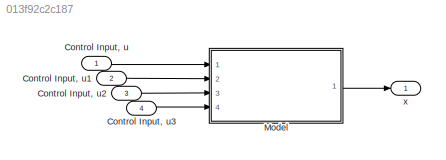
MODEL slx_013f92c2c187
KIND model
CONFIG AbsTol = auto
CONFIG EnableMultiTasking = off
CONFIG FixedStep = auto
CONFIG MaxStep = auto
CONFIG MinStep = auto
CONFIG RelTol = 1e-3
CONFIG SampleTimeConstraint = Unconstrained
CONFIG Solver = VariableStepAuto
CONFIG SolverName = VariableStepAuto
CONFIG StartTime = 0.0
CONFIG StopTime = 10.0
BLOCK [Outport]  x
  IconDisplay = Port number
BLOCK [Inport] Control Input, u
  IconDisplay = Port number
BLOCK [Inport] Control Input, u1
  IconDisplay = Port number
  Port = 2
BLOCK [Inport] Control Input, u2
  IconDisplay = Port number
  Port = 3
BLOCK [Inport] Control Input, u3
  IconDisplay = Port number
  Port = 4
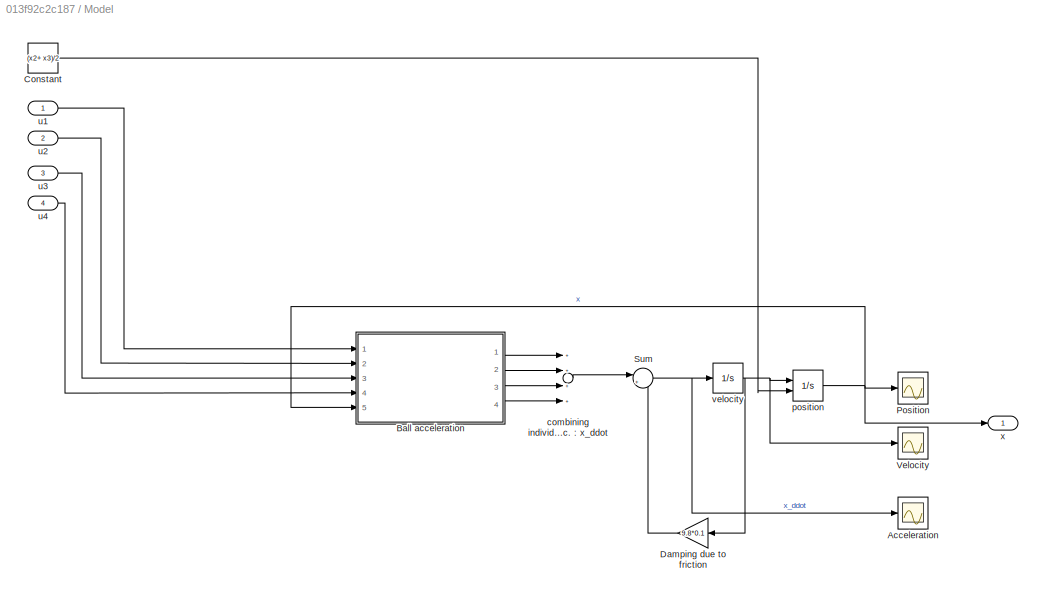
BLOCK [SubSystem] Model
  Ports = [4, 1]
  RequestExecContextInheritance = off
  Variant = off
BLOCK [Scope] Model/Acceleration
  NumInputPorts = 1
  Ports = [1]
  ScopeSpecificationString = C++SS(StrPVP('SaveName','ScopeData1'),StrPVP('LimitDataPoints','on'),StrPVP('DataFormat','Array'),StrPVP('Decimation','1'),StrPVP('BlockParamSampleInput','off'))
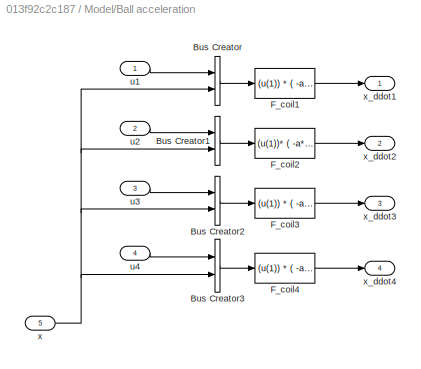
BLOCK [SubSystem] Model/Ball acceleration
  Ports = [5, 4]
  RequestExecContextInheritance = off
  Variant = off
BLOCK [BusCreator] Model/Ball acceleration/Bus Creator
  DisplayOption = bar
  InheritFromInputs = on
  Inputs = 2
  Ports = [2, 1]
BLOCK [BusCreator] Model/Ball acceleration/Bus Creator1
  DisplayOption = bar
  InheritFromInputs = on
  Inputs = 2
  Ports = [2, 1]
BLOCK [BusCreator] Model/Ball acceleration/Bus Creator2
  DisplayOption = bar
  InheritFromInputs = on
  Inputs = 2
  Ports = [2, 1]
BLOCK [BusCreator] Model/Ball acceleration/Bus Creator3
  DisplayOption = bar
  InheritFromInputs = on
  Inputs = 2
  Ports = [2, 1]
BLOCK [Fcn] Model/Ball acceleration/F_coil1
  Expr = (u(1)) * ( -a*(-x1+u(2)) / ( (m* (  (-x1 + u(2))^2 + b)^3)))
BLOCK [Fcn] Model/Ball acceleration/F_coil2
  Expr = (u(1))* ( -a*(u(2)-x2) / ( (m* (  (u(2) - x2)^2 + b)^3)))
BLOCK [Fcn] Model/Ball acceleration/F_coil3
  Expr = (u(1)) * ( -a*(u(2)-x3) / ( (m* (  (u(2)-x3)^2 + b)^3)))
BLOCK [Fcn] Model/Ball acceleration/F_coil4
  Expr = (u(1)) * ( -a*(u(2) -x4 ) / ( (m* (  (u(2) - x4)^2 + b)^3)))
BLOCK [Inport] Model/Ball acceleration/u1
  IconDisplay = Port number
BLOCK [Inport] Model/Ball acceleration/u2
  IconDisplay = Port number
  Port = 2
BLOCK [Inport] Model/Ball acceleration/u3
  IconDisplay = Port number
  Port = 3
BLOCK [Inport] Model/Ball acceleration/u4
  IconDisplay = Port number
  Port = 4
BLOCK [Inport] Model/Ball acceleration/x
  IconDisplay = Port number
  Port = 5
BLOCK [Outport] Model/Ball acceleration/x_ddot1
  IconDisplay = Port number
BLOCK [Outport] Model/Ball acceleration/x_ddot2
  IconDisplay = Port number
  Port = 2
BLOCK [Outport] Model/Ball acceleration/x_ddot3
  IconDisplay = Port number
  Port = 3
BLOCK [Outport] Model/Ball acceleration/x_ddot4
  IconDisplay = Port number
  Port = 4
BLOCK [Constant] Model/Constant
  Value = (x2+ x3)/2
BLOCK [Gain] Model/Damping due to friction
  Gain = 9.8*0.1
  OutDataTypeStr = Inherit: Inherit via internal rule
  ParamDataTypeStr = Inherit: Inherit via internal rule
  SaturateOnIntegerOverflow = off
BLOCK [Scope] Model/Position
  NumInputPorts = 1
  Ports = [1]
  ScopeSpecificationString = C++SS(StrPVP('SaveName','ScopeData3'),StrPVP('LimitDataPoints','on'),StrPVP('DataFormat','Array'),StrPVP('Decimation','1'),StrPVP('BlockParamSampleInput','off'))
BLOCK [Sum] Model/Sum
  IconShape = round
  InputSameDT = off
  Inputs = |+-
  OutDataTypeStr = Inherit: Inherit via internal rule
  Ports = [2, 1]
  SaturateOnIntegerOverflow = off
BLOCK [Scope] Model/Velocity
  NumInputPorts = 1
  Ports = [1]
  ScopeSpecificationString = C++SS(StrPVP('SaveName','ScopeData'),StrPVP('LimitDataPoints','on'),StrPVP('DataFormat','Array'),StrPVP('Decimation','1'),StrPVP('BlockParamSampleInput','off'))
BLOCK [Sum] Model/combining individual acc. : x_ddot
  InputSameDT = off
  Inputs = ++++
  OutDataTypeStr = Inherit: Inherit via internal rule
  Ports = [4, 1]
  SaturateOnIntegerOverflow = off
BLOCK [Integrator] Model/position
  InitialCondition = x0
  InitialConditionSource = external
  Ports = [2, 1]
BLOCK [Inport] Model/u1
  IconDisplay = Port number
BLOCK [Inport] Model/u2
  IconDisplay = Port number
  Port = 2
BLOCK [Inport] Model/u3
  IconDisplay = Port number
  Port = 3
BLOCK [Inport] Model/u4
  IconDisplay = Port number
  Port = 4
BLOCK [Integrator] Model/velocity
  Ports = [1, 1]
BLOCK [Outport] Model/x
  IconDisplay = Port number
LINE Control Input, u1:1 -> Model:2
LINE Control Input, u2:1 -> Model:3
LINE Control Input, u3:1 -> Model:4
LINE Control Input, u:1 -> Model:1
LINE Model/Ball acceleration/Bus Creator1:1 -> Model/Ball acceleration/F_coil2:1
LINE Model/Ball acceleration/Bus Creator2:1 -> Model/Ball acceleration/F_coil3:1
LINE Model/Ball acceleration/Bus Creator3:1 -> Model/Ball acceleration/F_coil4:1
LINE Model/Ball acceleration/Bus Creator:1 -> Model/Ball acceleration/F_coil1:1
LINE Model/Ball acceleration/F_coil1:1 -> Model/Ball acceleration/x_ddot1:1
LINE Model/Ball acceleration/F_coil2:1 -> Model/Ball acceleration/x_ddot2:1
LINE Model/Ball acceleration/F_coil3:1 -> Model/Ball acceleration/x_ddot3:1
LINE Model/Ball acceleration/F_coil4:1 -> Model/Ball acceleration/x_ddot4:1
LINE Model/Ball acceleration/u1:1 -> Model/Ball acceleration/Bus Creator:1
LINE Model/Ball acceleration/u2:1 -> Model/Ball acceleration/Bus Creator1:1
LINE Model/Ball acceleration/u3:1 -> Model/Ball acceleration/Bus Creator2:1
LINE Model/Ball acceleration/u4:1 -> Model/Ball acceleration/Bus Creator3:1
NET Model/Ball acceleration/x:1 -> Model/Ball acceleration/Bus Creator1:2, Model/Ball acceleration/Bus Creator2:2, Model/Ball acceleration/Bus Creator3:2, Model/Ball acceleration/Bus Creator:2
LINE Model/Ball acceleration:1 -> Model/combining individual acc. : x_ddot:1
LINE Model/Ball acceleration:2 -> Model/combining individual acc. : x_ddot:2
LINE Model/Ball acceleration:3 -> Model/combining individual acc. : x_ddot:3
LINE Model/Ball acceleration:4 -> Model/combining individual acc. : x_ddot:4
LINE Model/Constant:1 -> Model/position:2
LINE Model/Damping due to friction:1 -> Model/Sum:2
NET Model/Sum:1 -> Model/Acceleration:1, Model/velocity:1
LINE Model/combining individual acc. : x_ddot:1 -> Model/Sum:1
NET Model/position:1 -> Model/Ball acceleration:5, Model/Position:1, Model/x:1
LINE Model/u1:1 -> Model/Ball acceleration:1
LINE Model/u2:1 -> Model/Ball acceleration:2
LINE Model/u3:1 -> Model/Ball acceleration:3
LINE Model/u4:1 -> Model/Ball acceleration:4
NET Model/velocity:1 -> Model/Damping due to friction:1, Model/Velocity:1, Model/position:1
LINE Model:1 ->  x:1
note: NET lines group one-source signal fan-out (src -> all destinations, sorted); 1:1 wires keep LINE
